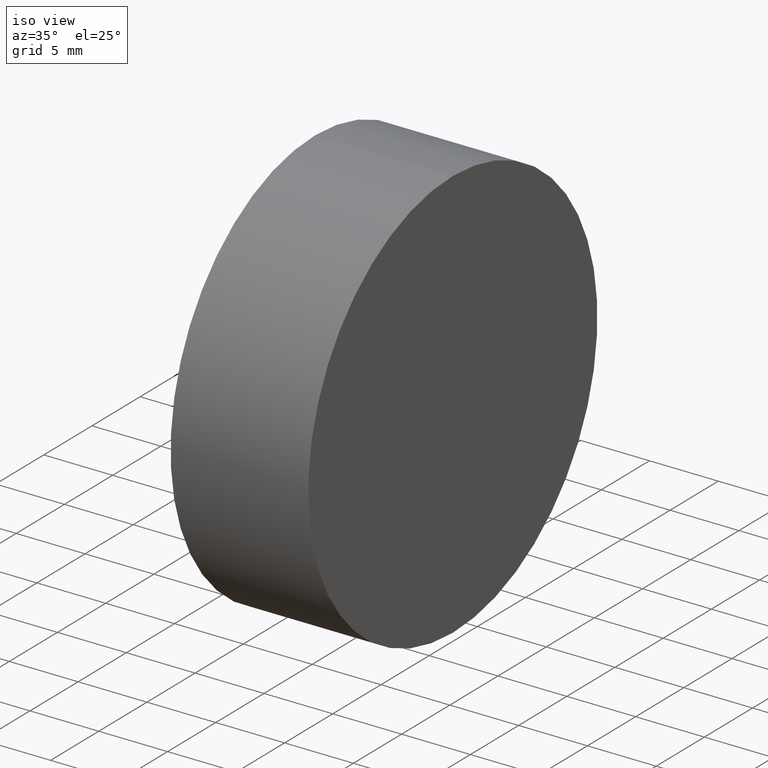
[diagram: clean part render]
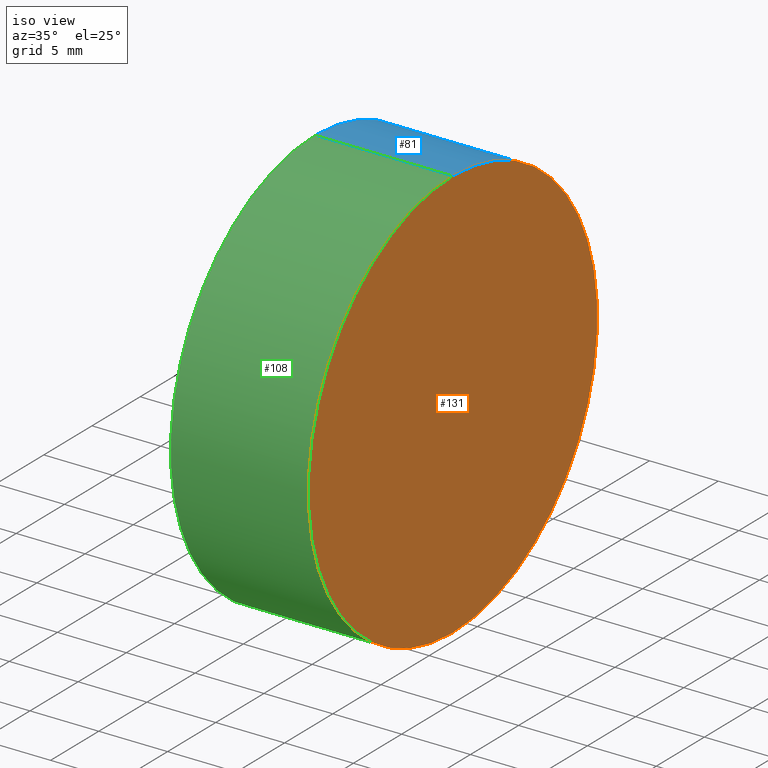
[diagram: same view with three faces highlighted in distinct colors, each labeled with its STEP entity id]
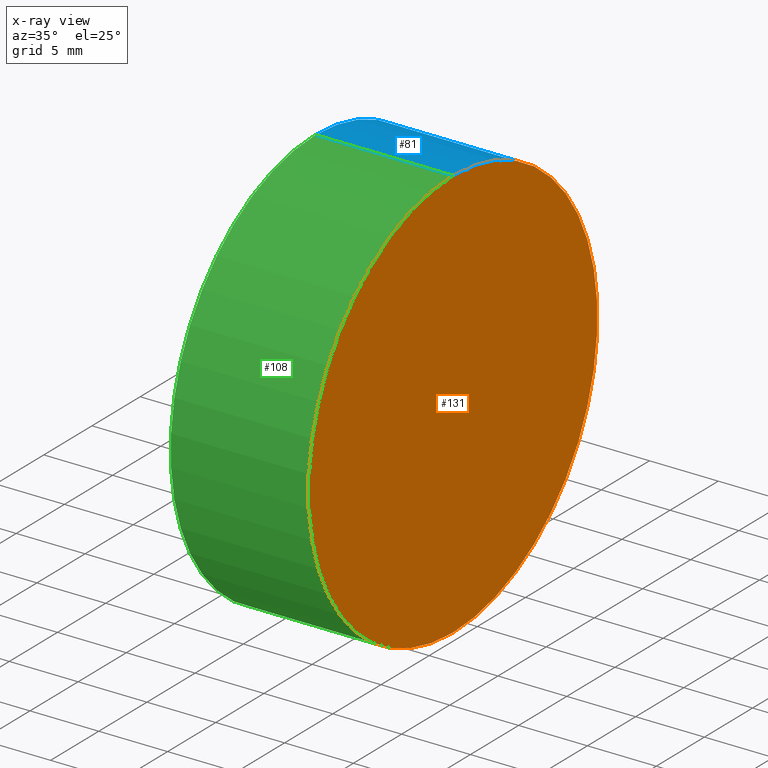
[diagram: x-ray of the same camera — body ghosted, the three highlighted faces saturated]
A machine part, iso view with three faces highlighted in distinct colors.
The next image is the same camera in x-ray (body ghosted, the three faces saturated) — at least one of them is partly hidden behind the body in this view.
Their STEP definitions:

[orange] entity #131 — the highlighted planar face has unit normal (-1, 0, -0).
#12 = AXIS2_PLACEMENT_3D ( 'NONE', #105, #43, #80 ) ;
#17 = CARTESIAN_POINT ( 'NONE',  ( 270.1163036661670300, 77.29317934901541800, 0.0000000000000000000 ) ) ;
#20 = CARTESIAN_POINT ( 'NONE',  ( 270.1163036661670300, 77.29317934901541800, 0.0000000000000000000 ) ) ;
#21 = DIRECTION ( 'NONE',  ( -1.000000000000000000, 0.0000000000000000000, -0.0000000000000000000 ) ) ;
#24 = CIRCLE ( 'NONE', #12, 15.00000000000000000 ) ;
#27 = CARTESIAN_POINT ( 'NONE',  ( 270.1163036661670300, 77.29317934901541800, -15.00000000000000000 ) ) ;
#43 = DIRECTION ( 'NONE',  ( -1.000000000000000000, -0.0000000000000000000, -0.0000000000000000000 ) ) ;
#49 = EDGE_CURVE ( 'NONE', #130, #123, #24, .T. ) ;
#55 = DIRECTION ( 'NONE',  ( -1.000000000000000000, -0.0000000000000000000, -0.0000000000000000000 ) ) ;
#58 = AXIS2_PLACEMENT_3D ( 'NONE', #20, #55, #95 ) ;
#59 = ORIENTED_EDGE ( 'NONE', *, *, #140, .F. ) ;
#75 = CARTESIAN_POINT ( 'NONE',  ( 270.1163036661670300, 77.29317934901541800, 15.00000000000000000 ) ) ;
#80 = DIRECTION ( 'NONE',  ( 0.0000000000000000000, 0.0000000000000000000, 1.000000000000000000 ) ) ;
#84 = ORIENTED_EDGE ( 'NONE', *, *, #49, .F. ) ;
#86 = EDGE_LOOP ( 'NONE', ( #59, #84 ) ) ;
#94 = CIRCLE ( 'NONE', #58, 15.00000000000000000 ) ;
#95 = DIRECTION ( 'NONE',  ( 0.0000000000000000000, 0.0000000000000000000, 1.000000000000000000 ) ) ;
#98 = FACE_OUTER_BOUND ( 'NONE', #86, .T. ) ;
#105 = CARTESIAN_POINT ( 'NONE',  ( 270.1163036661670300, 77.29317934901541800, 0.0000000000000000000 ) ) ;
#116 = PLANE ( 'NONE',  #126 ) ;
#119 = DIRECTION ( 'NONE',  ( -0.0000000000000000000, 0.0000000000000000000, 1.000000000000000000 ) ) ;
#123 = VERTEX_POINT ( 'NONE', #75 ) ;
#126 = AXIS2_PLACEMENT_3D ( 'NONE', #17, #21, #119 ) ;
#130 = VERTEX_POINT ( 'NONE', #27 ) ;
#131 = ADVANCED_FACE ( 'NONE', ( #98 ), #116, .F. ) ;
#140 = EDGE_CURVE ( 'NONE', #123, #130, #94, .T. ) ;

[blue] entity #81 — the highlighted cylindrical surface (partial cylindrical patch) has radius 15 mm, axis along (-1, -0, -0).
#1 = CARTESIAN_POINT ( 'NONE',  ( 254.0008019926160300, 77.29317934901541800, 15.00000000000000000 ) ) ;
#3 = CARTESIAN_POINT ( 'NONE',  ( 254.0008019926160300, 77.29317934901541800, 0.0000000000000000000 ) ) ;
#4 = EDGE_LOOP ( 'NONE', ( #73, #9, #53, #97 ) ) ;
#9 = ORIENTED_EDGE ( 'NONE', *, *, #25, .T. ) ;
#14 = DIRECTION ( 'NONE',  ( 0.0000000000000000000, 0.0000000000000000000, 1.000000000000000000 ) ) ;
#20 = CARTESIAN_POINT ( 'NONE',  ( 270.1163036661670300, 77.29317934901541800, 0.0000000000000000000 ) ) ;
#22 = CIRCLE ( 'NONE', #29, 15.00000000000000000 ) ;
#25 = EDGE_CURVE ( 'NONE', #130, #63, #47, .T. ) ;
#27 = CARTESIAN_POINT ( 'NONE',  ( 270.1163036661670300, 77.29317934901541800, -15.00000000000000000 ) ) ;
#28 = VECTOR ( 'NONE', #132, 1000.000000000000000 ) ;
#29 = AXIS2_PLACEMENT_3D ( 'NONE', #128, #89, #107 ) ;
#32 = CARTESIAN_POINT ( 'NONE',  ( 254.0008019926160300, 77.29317934901541800, -15.00000000000000000 ) ) ;
#36 = DIRECTION ( 'NONE',  ( -1.000000000000000000, -0.0000000000000000000, -0.0000000000000000000 ) ) ;
#40 = DIRECTION ( 'NONE',  ( -1.000000000000000000, -0.0000000000000000000, -0.0000000000000000000 ) ) ;
#41 = VERTEX_POINT ( 'NONE', #92 ) ;
#42 = CARTESIAN_POINT ( 'NONE',  ( 260.1163036661670800, 77.29317934901541800, -15.00000000000000000 ) ) ;
#44 = VECTOR ( 'NONE', #40, 1000.000000000000000 ) ;
#47 = LINE ( 'NONE', #32, #44 ) ;
#53 = ORIENTED_EDGE ( 'NONE', *, *, #87, .F. ) ;
#55 = DIRECTION ( 'NONE',  ( -1.000000000000000000, -0.0000000000000000000, -0.0000000000000000000 ) ) ;
#58 = AXIS2_PLACEMENT_3D ( 'NONE', #20, #55, #95 ) ;
#63 = VERTEX_POINT ( 'NONE', #42 ) ;
#69 = LINE ( 'NONE', #1, #28 ) ;
#71 = CYLINDRICAL_SURFACE ( 'NONE', #72, 15.00000000000000000 ) ;
#72 = AXIS2_PLACEMENT_3D ( 'NONE', #3, #36, #14 ) ;
#73 = ORIENTED_EDGE ( 'NONE', *, *, #140, .T. ) ;
#75 = CARTESIAN_POINT ( 'NONE',  ( 270.1163036661670300, 77.29317934901541800, 15.00000000000000000 ) ) ;
#76 = FACE_OUTER_BOUND ( 'NONE', #4, .T. ) ;
#81 = ADVANCED_FACE ( 'NONE', ( #76 ), #71, .T. ) ;
#87 = EDGE_CURVE ( 'NONE', #41, #63, #22, .T. ) ;
#89 = DIRECTION ( 'NONE',  ( -1.000000000000000000, -0.0000000000000000000, -0.0000000000000000000 ) ) ;
#92 = CARTESIAN_POINT ( 'NONE',  ( 260.1163036661670800, 77.29317934901541800, 15.00000000000000000 ) ) ;
#94 = CIRCLE ( 'NONE', #58, 15.00000000000000000 ) ;
#95 = DIRECTION ( 'NONE',  ( 0.0000000000000000000, 0.0000000000000000000, 1.000000000000000000 ) ) ;
#97 = ORIENTED_EDGE ( 'NONE', *, *, #100, .F. ) ;
#100 = EDGE_CURVE ( 'NONE', #123, #41, #69, .T. ) ;
#107 = DIRECTION ( 'NONE',  ( 0.0000000000000000000, 0.0000000000000000000, 1.000000000000000000 ) ) ;
#123 = VERTEX_POINT ( 'NONE', #75 ) ;
#128 = CARTESIAN_POINT ( 'NONE',  ( 260.1163036661670800, 77.29317934901541800, 0.0000000000000000000 ) ) ;
#130 = VERTEX_POINT ( 'NONE', #27 ) ;
#132 = DIRECTION ( 'NONE',  ( -1.000000000000000000, -0.0000000000000000000, -0.0000000000000000000 ) ) ;
#140 = EDGE_CURVE ( 'NONE', #123, #130, #94, .T. ) ;

[green] entity #108 — the highlighted cylindrical surface (partial cylindrical patch) has radius 15 mm, axis along (-1, -0, -0).
#1 = CARTESIAN_POINT ( 'NONE',  ( 254.0008019926160300, 77.29317934901541800, 15.00000000000000000 ) ) ;
#5 = AXIS2_PLACEMENT_3D ( 'NONE', #106, #115, #88 ) ;
#12 = AXIS2_PLACEMENT_3D ( 'NONE', #105, #43, #80 ) ;
#15 = ORIENTED_EDGE ( 'NONE', *, *, #30, .F. ) ;
#24 = CIRCLE ( 'NONE', #12, 15.00000000000000000 ) ;
#25 = EDGE_CURVE ( 'NONE', #130, #63, #47, .T. ) ;
#27 = CARTESIAN_POINT ( 'NONE',  ( 270.1163036661670300, 77.29317934901541800, -15.00000000000000000 ) ) ;
#28 = VECTOR ( 'NONE', #132, 1000.000000000000000 ) ;
#30 = EDGE_CURVE ( 'NONE', #63, #41, #104, .T. ) ;
#32 = CARTESIAN_POINT ( 'NONE',  ( 254.0008019926160300, 77.29317934901541800, -15.00000000000000000 ) ) ;
#35 = ORIENTED_EDGE ( 'NONE', *, *, #49, .T. ) ;
#40 = DIRECTION ( 'NONE',  ( -1.000000000000000000, -0.0000000000000000000, -0.0000000000000000000 ) ) ;
#41 = VERTEX_POINT ( 'NONE', #92 ) ;
#42 = CARTESIAN_POINT ( 'NONE',  ( 260.1163036661670800, 77.29317934901541800, -15.00000000000000000 ) ) ;
#43 = DIRECTION ( 'NONE',  ( -1.000000000000000000, -0.0000000000000000000, -0.0000000000000000000 ) ) ;
#44 = VECTOR ( 'NONE', #40, 1000.000000000000000 ) ;
#47 = LINE ( 'NONE', #32, #44 ) ;
#49 = EDGE_CURVE ( 'NONE', #130, #123, #24, .T. ) ;
#62 = DIRECTION ( 'NONE',  ( 0.0000000000000000000, 0.0000000000000000000, 1.000000000000000000 ) ) ;
#63 = VERTEX_POINT ( 'NONE', #42 ) ;
#69 = LINE ( 'NONE', #1, #28 ) ;
#74 = AXIS2_PLACEMENT_3D ( 'NONE', #91, #129, #62 ) ;
#75 = CARTESIAN_POINT ( 'NONE',  ( 270.1163036661670300, 77.29317934901541800, 15.00000000000000000 ) ) ;
#78 = ORIENTED_EDGE ( 'NONE', *, *, #25, .F. ) ;
#80 = DIRECTION ( 'NONE',  ( 0.0000000000000000000, 0.0000000000000000000, 1.000000000000000000 ) ) ;
#88 = DIRECTION ( 'NONE',  ( 0.0000000000000000000, 0.0000000000000000000, 1.000000000000000000 ) ) ;
#91 = CARTESIAN_POINT ( 'NONE',  ( 254.0008019926160300, 77.29317934901541800, 0.0000000000000000000 ) ) ;
#92 = CARTESIAN_POINT ( 'NONE',  ( 260.1163036661670800, 77.29317934901541800, 15.00000000000000000 ) ) ;
#100 = EDGE_CURVE ( 'NONE', #123, #41, #69, .T. ) ;
#104 = CIRCLE ( 'NONE', #5, 15.00000000000000000 ) ;
#105 = CARTESIAN_POINT ( 'NONE',  ( 270.1163036661670300, 77.29317934901541800, 0.0000000000000000000 ) ) ;
#106 = CARTESIAN_POINT ( 'NONE',  ( 260.1163036661670800, 77.29317934901541800, 0.0000000000000000000 ) ) ;
#108 = ADVANCED_FACE ( 'NONE', ( #125 ), #134, .T. ) ;
#109 = EDGE_LOOP ( 'NONE', ( #78, #35, #112, #15 ) ) ;
#112 = ORIENTED_EDGE ( 'NONE', *, *, #100, .T. ) ;
#115 = DIRECTION ( 'NONE',  ( -1.000000000000000000, -0.0000000000000000000, -0.0000000000000000000 ) ) ;
#123 = VERTEX_POINT ( 'NONE', #75 ) ;
#125 = FACE_OUTER_BOUND ( 'NONE', #109, .T. ) ;
#129 = DIRECTION ( 'NONE',  ( -1.000000000000000000, -0.0000000000000000000, -0.0000000000000000000 ) ) ;
#130 = VERTEX_POINT ( 'NONE', #27 ) ;
#132 = DIRECTION ( 'NONE',  ( -1.000000000000000000, -0.0000000000000000000, -0.0000000000000000000 ) ) ;
#134 = CYLINDRICAL_SURFACE ( 'NONE', #74, 15.00000000000000000 ) ;